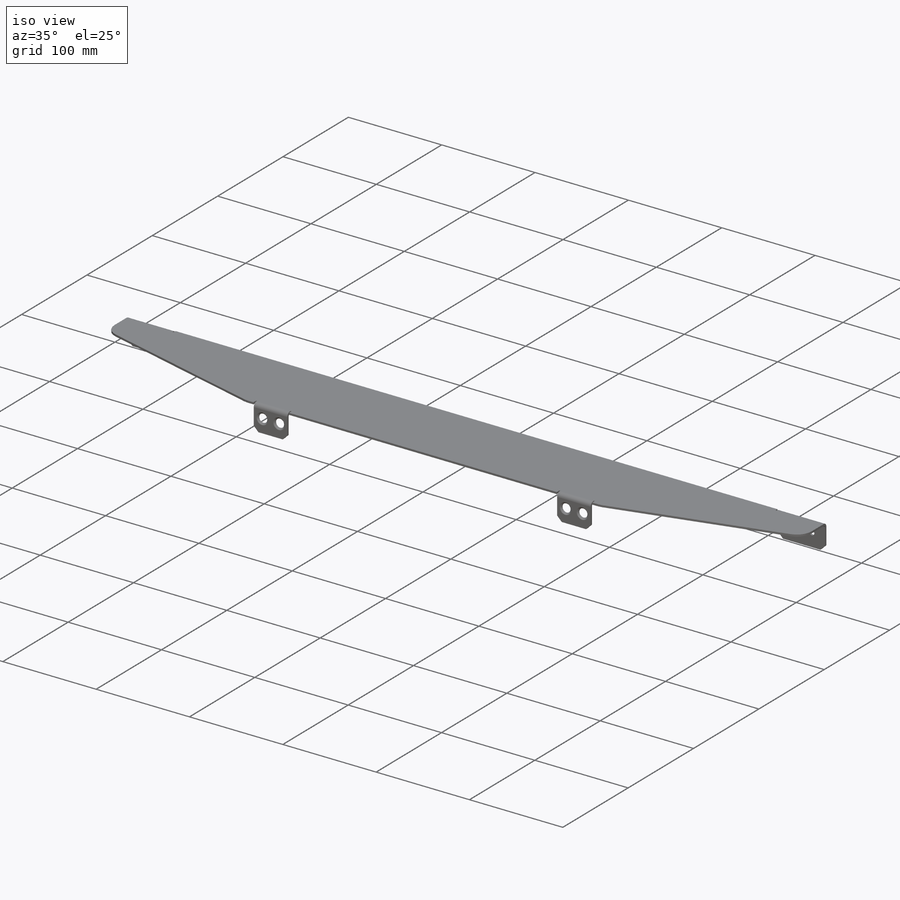
[diagram: iso view]
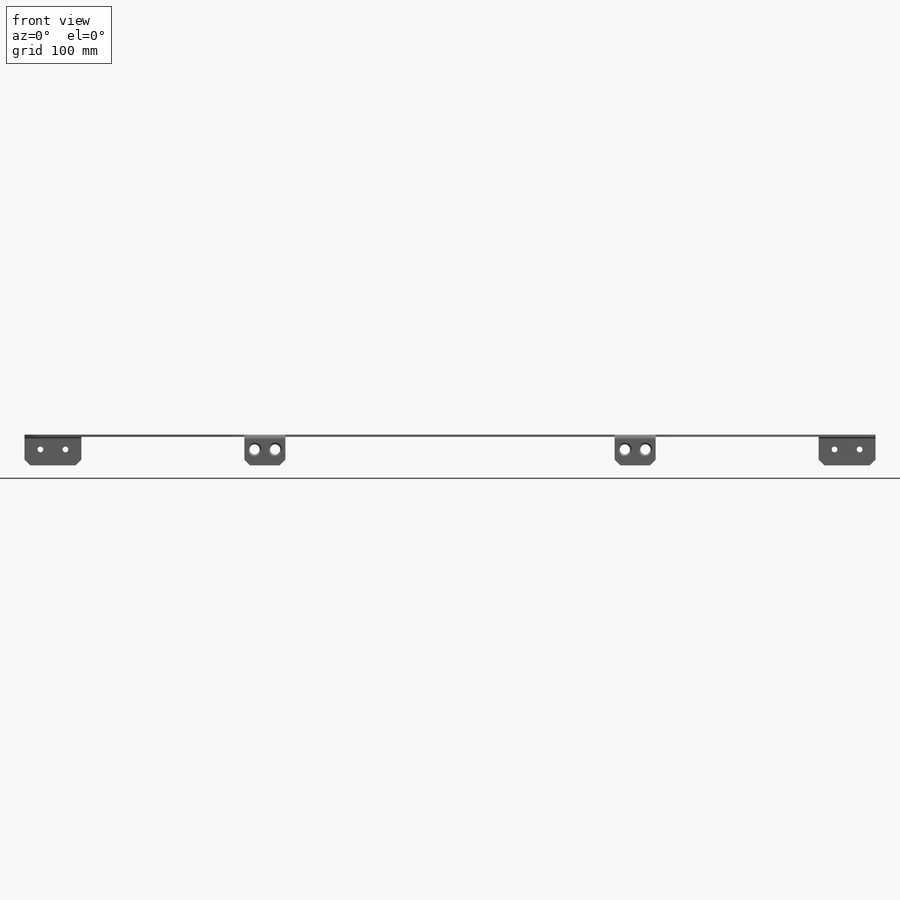
[diagram: front view]
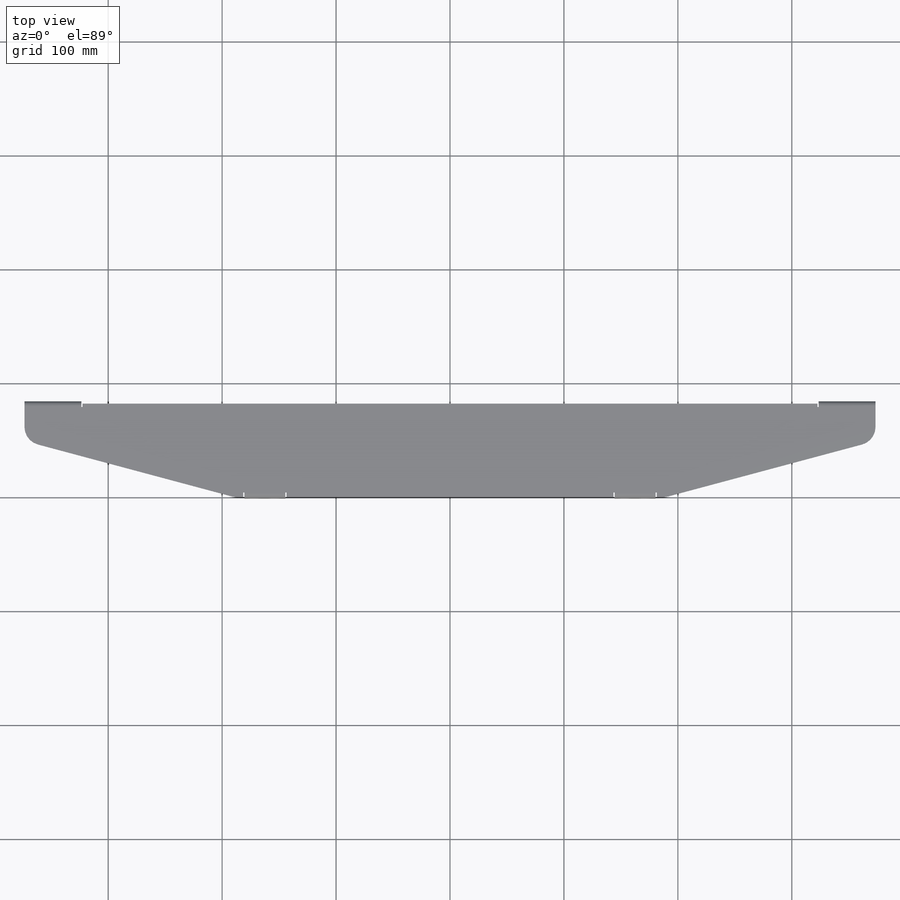
[diagram: top view]
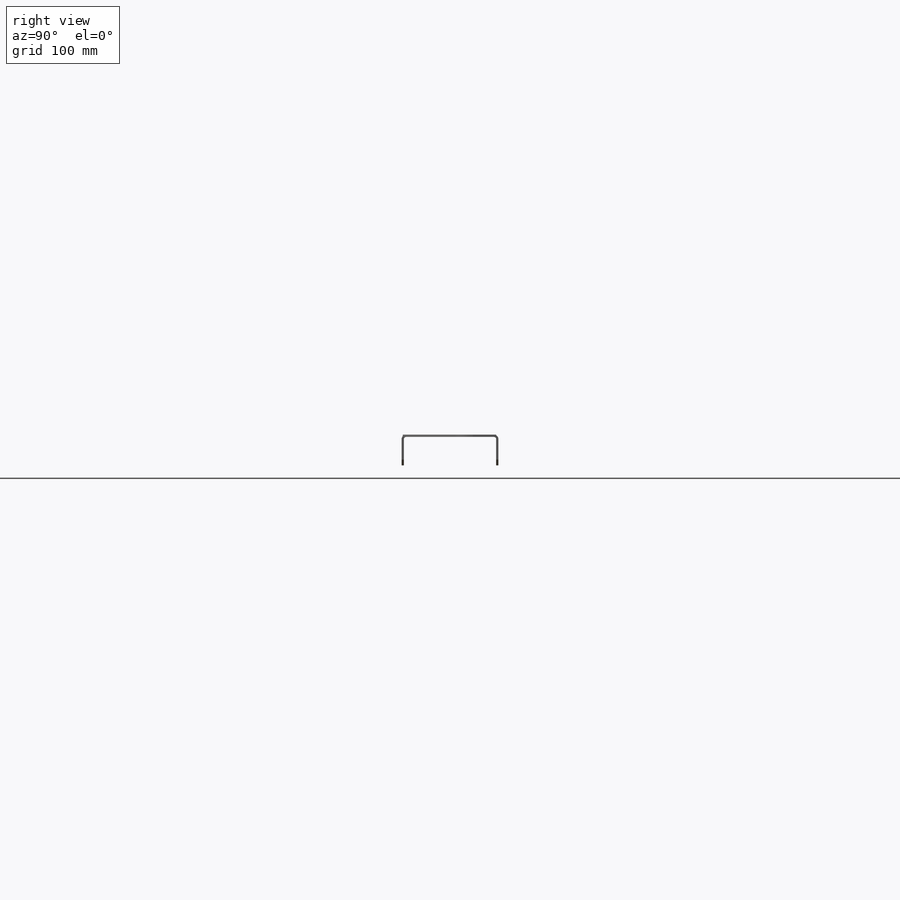
[diagram: right view]
SOLIDWORKS PART (.sldprt)
format: sldprt  version: not decoded by parser v0  size: 385,024 bytes
history: native  units: mm
features: sketch x12, sheet_metal_op x8, plane x3, cut_extrude x2, material x1, chamfer x1, hole x1 + 9 further entries (+9 scaffold rows collapsed)
feature tree (46):
  scaffold x9  (default folders/planes/origin — collapsed)
  material  "Ст 3 ГОСТ 380-2005"
  plane  "Спереди"
  plane  "Сверху"
  plane  "Слева"
  "Начало координат"
  "PTricksFreeParameters"
  "PTricksEqu"
  "PTricksFreeParameters"
  sketch  "Эскиз1"  dims[c1.D1=16.0mm c1.D2=~59.429784mm c2.D2=~30.03877deg c3.D2=~261.799388mm c3.D3=84.0mm c3.D4=747.0mm c3.D5=375.0mm]
  sheet_metal_op  "Листовой металл1"  Толщина=2mm
  sheet_metal_op  "Базовая кромка1"
  sketch  "Эскиз3"  dims[D1=50.0mm]
  sketch  "Эскиз4"  dims[D1=50.0mm]
  sketch  "Эскиз7"  dims[c1.D1=50.0mm c1.D2=~143.44971mm c2.D1=2.0mm c2.D4=~1570.796327mm c2.D5=1.0 c2.D8=~0.057296deg c2.D9=~0.057296deg c3.D1=2.0mm c3.D2=~28.64789deg c3.D3=0.0deg c3.D6=10.0mm c3.D7=25.0mm]
  sheet_metal_op  "Ребро-кромка2"
  sketch  "Эскиз10"  dims[D1=50.0mm]
  sheet_metal_op  "EdgeBend2"
  sheet_metal_op  "Ребро-кромка3"
  sketch  "Эскиз13"  dims[D1=36.0mm D2=229.0mm]
  sheet_metal_op  "EdgeBend3"
  sheet_metal_op  "Ребро-кромка4"
  sketch  "Эскиз16"  dims[D1=36.0mm D2=229.0mm]
  sheet_metal_op  "EdgeBend4"
  chamfer  "Фаска1"  Distance=5mm
  hole  "Зенковка для винта с потайной головкой M61"  [1 undecoded]
  sketch  "Эскиз19"  dims[c1.D1=25.0mm c2.D1=~1570.796327mm c3.D1=9.0mm c3.D2=9.0mm c3.D3=9.0mm c3.D4=9.0mm c3.D5=13.0mm c3.D6=9.0mm c3.D7=9.0mm c3.D8=13.0mm c3.D9=9.0mm]
  sketch  "Эскиз18"  dims[hole-wizard template sketch: 54 standard entries collapsed; hole parameters kept: c17.Диаметр сквозного отверстия=9.0mm c17.Глубина сквозного отверстия=2.0mm c17.Диаметр передней зенковки=12.0mm c17.D4=~3.666174mm c17.Угол передней зенковки=~1570.796327mm]
  sketch  "Эскиз20"  dims[c1.D2=~12.88412mm c1.D3=5.0mm c1.D1=14.0mm c2.D2=14.0mm]
  cut_extrude  "Вытянуть1"  [1 undecoded]
  sketch  "Эскиз21"  dims[D1=0.0mm]
  cut_extrude  "Вытянуть2"  Depth=2mm
  "Развертка1"
  sketch  "Сгиб-Линии1"
  "Преобразование эскиза1"
  "Плоское состояние-<EdgeBend2>1"
  "Плоское состояние-<EdgeBend3>1"
  "Плоское состояние-<EdgeBend4>1"
decode coverage: 14 of 24 modeling features carry decoded parameters; 9 rows unclassified (native names shown)
note: ~ marks probable driven/reference dimensions
note: 2 parameter values undecoded
note: suppression state not decoded; provenance and decode notes live in map.json
